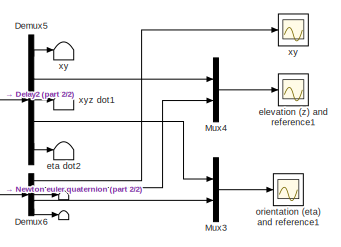
[diagram: root canvas - part 1/2, top right region]
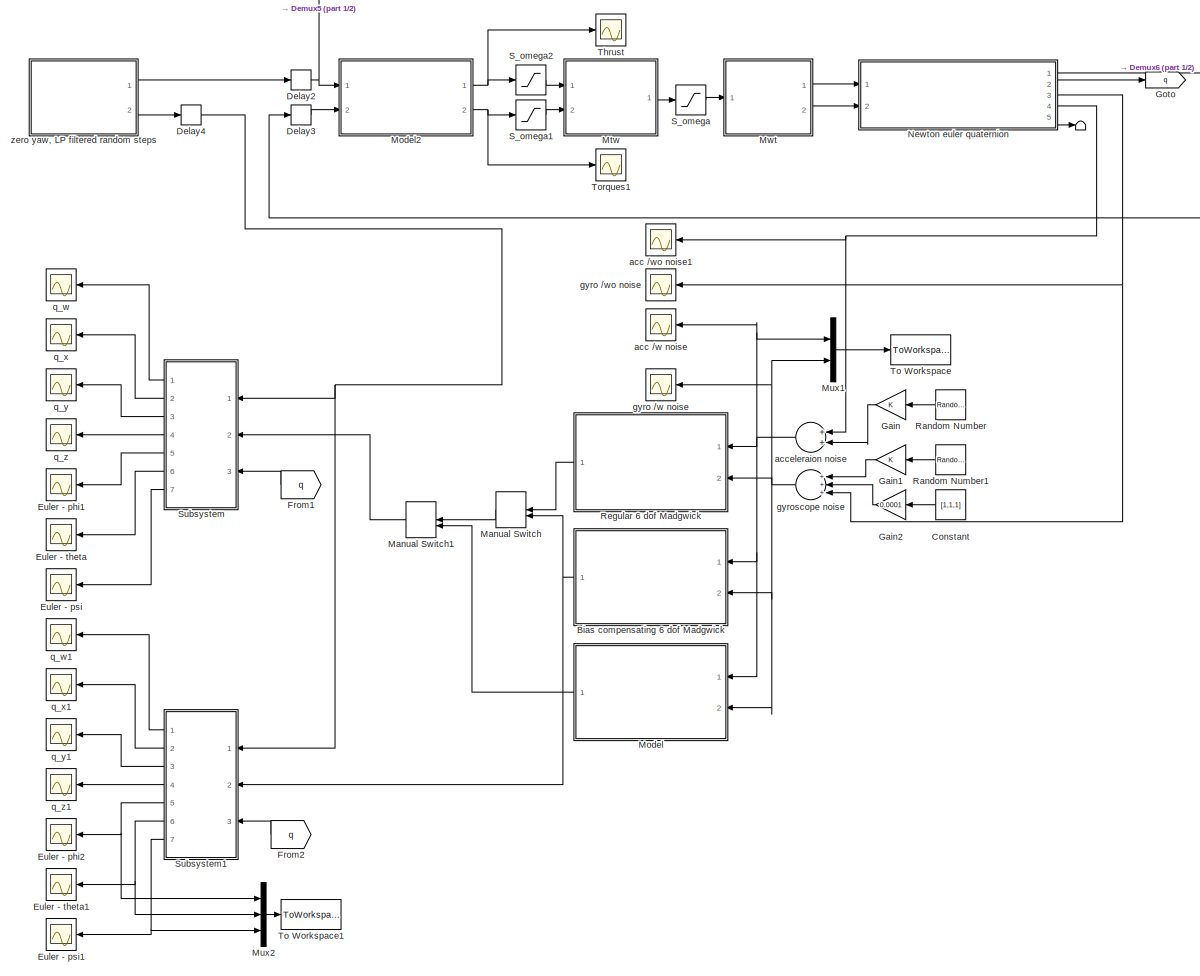
[diagram: root canvas - part 2/2, most of the canvas]
MODEL slx_3e022dd933c5
KIND model
CONFIG AbsTol = auto
CONFIG FixedStep = auto
CONFIG MaxStep = auto
CONFIG MinStep = auto
CONFIG RelTol = 1e-3
CONFIG SampleTimeConstraint = Unconstrained
CONFIG Solver = VariableStepAuto
CONFIG SolverMode = Auto
CONFIG SolverName = VariableStepAuto
CONFIG StartTime = 0.0
CONFIG StopTime = 60
BLOCK [Terminator]             
BLOCK [Terminator]               
BLOCK [Terminator]                
BLOCK [Terminator]    eta dot2
BLOCK [Terminator]    xy
BLOCK [Terminator]   xyz dot1
BLOCK [ModelReference] Bias compensating 6 dof Madgwick
  ModelNameDialog = madgwick_bias.slx
  ModelReferenceVersion = 1.26
  Ports = [2, 1]
  Variant = off
BLOCK [Constant] Constant
  Value = [1,1,1]
BLOCK [Delay] Delay2
  DelayLength = 1
  InitialCondition = 0
  InputPortMap = u0
  Ports = [1, 1]
  SampleTime = inner_h
BLOCK [Delay] Delay3
  DelayLength = 1
  InitialCondition = 0
  InputPortMap = u0
  Ports = [1, 1]
  SampleTime = inner_h
BLOCK [Delay] Delay4
  DelayLength = 1
  InitialCondition = 0
  InputPortMap = u0
  Ports = [1, 1]
  SampleTime = inner_h
BLOCK [Demux] Demux5
  DisplayOption = bar
  Outputs = [2,1,3,3,3]
  Ports = [1, 5]
BLOCK [Demux] Demux6
  DisplayOption = bar
  Outputs = [2,1,3,3,3]
  Ports = [1, 5]
BLOCK [Scope] Euler - phi1
  Ports = [1]
  ScopeSpecificationString = Simulink.scopes.TimeScopeBlockCfg('CurrentConfiguration', extmgr.ConfigurationSet(extmgr.Configuration('Core','General UI',true),extmgr.Configuration('Core','Source UI',true),extmgr.Configuration('Sources','WiredSimulink',true,'DataLoggingVariableName','ScopeData1','DataLoggingSaveFormat','Array','DataLoggingDecimation','1','DataLoggingDecimateData',true),extmgr.Configuration('Visuals','Time Domai...<+1504ch>
BLOCK [Scope] Euler - phi2
  Ports = [1]
  ScopeSpecificationString = Simulink.scopes.TimeScopeBlockCfg('CurrentConfiguration', extmgr.ConfigurationSet(extmgr.Configuration('Core','General UI',true),extmgr.Configuration('Core','Source UI',true),extmgr.Configuration('Sources','WiredSimulink',true,'DataLoggingVariableName','ScopeData1','DataLoggingSaveFormat','Array','DataLoggingDecimation','1','DataLoggingDecimateData',true),extmgr.Configuration('Visuals','Time Domai...<+1504ch>
BLOCK [Scope] Euler - psi
  Ports = [1]
  ScopeSpecificationString = Simulink.scopes.TimeScopeBlockCfg('CurrentConfiguration', extmgr.ConfigurationSet(extmgr.Configuration('Core','General UI',true),extmgr.Configuration('Core','Source UI',true),extmgr.Configuration('Sources','WiredSimulink',true,'DataLoggingVariableName','ScopeData2','DataLoggingSaveFormat','Array','DataLoggingDecimation','1','DataLoggingDecimateData',true),extmgr.Configuration('Visuals','Time Domai...<+1479ch>
BLOCK [Scope] Euler - psi1
  Ports = [1]
  ScopeSpecificationString = Simulink.scopes.TimeScopeBlockCfg('CurrentConfiguration', extmgr.ConfigurationSet(extmgr.Configuration('Core','General UI',true),extmgr.Configuration('Core','Source UI',true),extmgr.Configuration('Sources','WiredSimulink',true,'DataLoggingVariableName','ScopeData2','DataLoggingSaveFormat','Array','DataLoggingDecimation','1','DataLoggingDecimateData',true),extmgr.Configuration('Visuals','Time Domai...<+1481ch>
BLOCK [Scope] Euler - theta
  Ports = [1]
  ScopeSpecificationString = Simulink.scopes.TimeScopeBlockCfg('CurrentConfiguration', extmgr.ConfigurationSet(extmgr.Configuration('Core','General UI',true),extmgr.Configuration('Core','Source UI',true),extmgr.Configuration('Sources','WiredSimulink',true,'DataLoggingVariableName','ScopeData3','DataLoggingSaveFormat','Array','DataLoggingDecimation','1','DataLoggingDecimateData',true),extmgr.Configuration('Visuals','Time Domai...<+1505ch>
BLOCK [Scope] Euler - theta1
  Ports = [1]
  ScopeSpecificationString = Simulink.scopes.TimeScopeBlockCfg('CurrentConfiguration', extmgr.ConfigurationSet(extmgr.Configuration('Core','General UI',true),extmgr.Configuration('Core','Source UI',true),extmgr.Configuration('Sources','WiredSimulink',true,'DataLoggingVariableName','ScopeData3'),extmgr.Configuration('Visuals','Time Domain',true,'SerializedDisplays',{struct('MinYLimReal','-0.51215','MaxYLimReal','0.1494','YLabe...<+1416ch>
BLOCK [From] From1
  GotoTag = q
BLOCK [From] From2
  GotoTag = q
BLOCK [Gain] Gain
  OutDataTypeStr = Inherit: Inherit via internal rule
  ParamDataTypeStr = Inherit: Inherit via internal rule
  SaturateOnIntegerOverflow = off
BLOCK [Gain] Gain1
  OutDataTypeStr = Inherit: Inherit via internal rule
  ParamDataTypeStr = Inherit: Inherit via internal rule
  SaturateOnIntegerOverflow = off
BLOCK [Gain] Gain2
  Gain = 0.0001
  OutDataTypeStr = Inherit: Inherit via internal rule
  ParamDataTypeStr = Inherit: Inherit via internal rule
  SaturateOnIntegerOverflow = off
BLOCK [Goto] Goto
  GotoTag = q
BLOCK [ManualSwitch] Manual Switch
  CurrentSetting = 0
BLOCK [ManualSwitch] Manual Switch1
BLOCK [ModelReference] Model
  ModelNameDialog = mahony.slx
  ModelReferenceVersion = 1.2
  Ports = [2, 1]
  Variant = off
BLOCK [ModelReference] Model2
  ModelNameDialog = inner_PD_c.mdl
  ModelReferenceVersion = 1.87
  Ports = [2, 2]
  Variant = off
BLOCK [ModelReference] Mtw
  ModelNameDialog = thrust2omega.mdl
  ModelReferenceVersion = 1.3
  Ports = [2, 1]
  Variant = off
BLOCK [Mux] Mux1
  DisplayOption = bar
  Inputs = 2
  Ports = [2, 1]
BLOCK [Mux] Mux2
  DisplayOption = bar
  Inputs = 3
  Ports = [3, 1]
BLOCK [Mux] Mux3
  DisplayOption = bar
  Inputs = 2
  Ports = [2, 1]
BLOCK [Mux] Mux4
  DisplayOption = bar
  Inputs = 2
  Ports = [2, 1]
BLOCK [ModelReference] Mwt
  ModelNameDialog = omega2thrust.mdl
  ModelReferenceVersion = 1.3
  Ports = [1, 2]
  Variant = off
BLOCK [ModelReference] Newton euler quaternion
  ModelNameDialog = quadcopter_model_c_NewtonEuler.mdl
  ModelReferenceVersion = 1.325
  Ports = [2, 5]
  Variant = off
BLOCK [RandomNumber] Random Number
  Mean = [0,0,0]
  Variance = [0.5, 0.5, 0.5].^2
BLOCK [RandomNumber] Random Number1
  Mean = [0,0,0]
  Variance = [0.05,0.05,0.05].^2
BLOCK [ModelReference] Regular 6 dof Madgwick
  ModelNameDialog = madgwick.slx
  ModelReferenceVersion = 1.26
  Ports = [2, 1]
  Variant = off
BLOCK [Saturate] S_omega
  InputPortMap = u0
  LowerLimit = omega_min_lim
  Ports = [1, 1]
  UpperLimit = omega_max_lim
BLOCK [Saturate] S_omega1
  InputPortMap = u0
  LowerLimit = tau_min_lim
  Ports = [1, 1]
  UpperLimit = tau_max_lim
BLOCK [Saturate] S_omega2
  InputPortMap = u0
  LowerLimit = tau_min_lim
  Ports = [1, 1]
  UpperLimit = T_max_lim
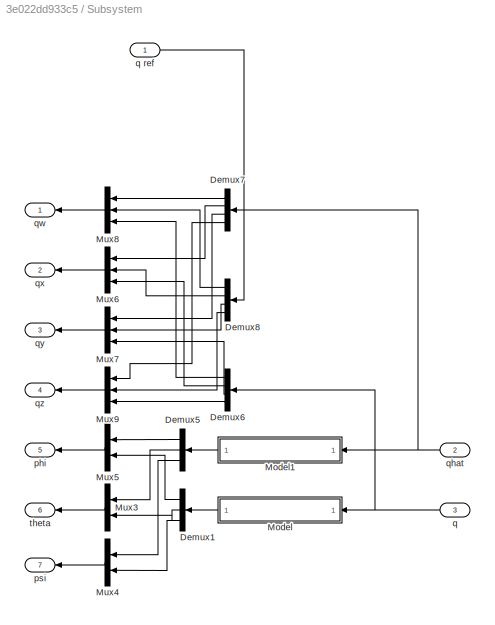
BLOCK [SubSystem] Subsystem
  Ports = [3, 7]
  RequestExecContextInheritance = off
  Variant = off
BLOCK [Demux] Subsystem/Demux1
  DisplayOption = bar
  Outputs = 3
  Ports = [1, 3]
BLOCK [Demux] Subsystem/Demux5
  DisplayOption = bar
  Outputs = 3
  Ports = [1, 3]
BLOCK [Demux] Subsystem/Demux6
  DisplayOption = bar
  Ports = [1, 4]
BLOCK [Demux] Subsystem/Demux7
  DisplayOption = bar
  Ports = [1, 4]
BLOCK [Demux] Subsystem/Demux8
  DisplayOption = bar
  Ports = [1, 4]
BLOCK [ModelReference] Subsystem/Model
  ModelNameDialog = quaternion2euler.mdl
  ModelReferenceVersion = 1.92
  Ports = [1, 1]
  Variant = off
BLOCK [ModelReference] Subsystem/Model1
  ModelNameDialog = quaternion2euler.mdl
  ModelReferenceVersion = 1.92
  Ports = [1, 1]
  Variant = off
BLOCK [Mux] Subsystem/Mux3
  DisplayOption = bar
  Inputs = 2
  Ports = [2, 1]
BLOCK [Mux] Subsystem/Mux4
  DisplayOption = bar
  Inputs = 2
  Ports = [2, 1]
BLOCK [Mux] Subsystem/Mux5
  DisplayOption = bar
  Inputs = 2
  Ports = [2, 1]
BLOCK [Mux] Subsystem/Mux6
  DisplayOption = bar
  Inputs = 3
  Ports = [3, 1]
BLOCK [Mux] Subsystem/Mux7
  DisplayOption = bar
  Inputs = 3
  Ports = [3, 1]
BLOCK [Mux] Subsystem/Mux8
  DisplayOption = bar
  Inputs = 3
  Ports = [3, 1]
BLOCK [Mux] Subsystem/Mux9
  DisplayOption = bar
  Inputs = 3
  Ports = [3, 1]
BLOCK [Outport] Subsystem/phi
  IconDisplay = Port number
  Port = 5
BLOCK [Outport] Subsystem/psi
  IconDisplay = Port number
  Port = 7
BLOCK [Inport] Subsystem/q
  IconDisplay = Port number
  Port = 3
BLOCK [Inport] Subsystem/q ref
  IconDisplay = Port number
BLOCK [Inport] Subsystem/qhat
  IconDisplay = Port number
  Port = 2
BLOCK [Outport] Subsystem/qw
  IconDisplay = Port number
BLOCK [Outport] Subsystem/qx
  IconDisplay = Port number
  Port = 2
BLOCK [Outport] Subsystem/qy
  IconDisplay = Port number
  Port = 3
BLOCK [Outport] Subsystem/qz
  IconDisplay = Port number
  Port = 4
BLOCK [Outport] Subsystem/theta
  IconDisplay = Port number
  Port = 6
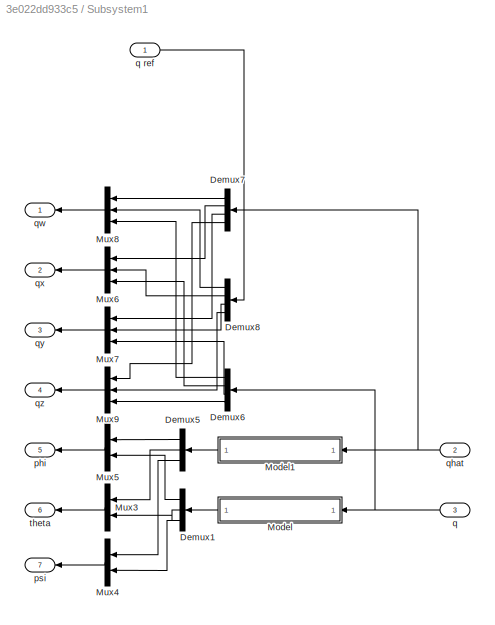
BLOCK [SubSystem] Subsystem1
  Ports = [3, 7]
  RequestExecContextInheritance = off
  Variant = off
BLOCK [Demux] Subsystem1/Demux1
  DisplayOption = bar
  Outputs = 3
  Ports = [1, 3]
BLOCK [Demux] Subsystem1/Demux5
  DisplayOption = bar
  Outputs = 3
  Ports = [1, 3]
BLOCK [Demux] Subsystem1/Demux6
  DisplayOption = bar
  Ports = [1, 4]
BLOCK [Demux] Subsystem1/Demux7
  DisplayOption = bar
  Ports = [1, 4]
BLOCK [Demux] Subsystem1/Demux8
  DisplayOption = bar
  Ports = [1, 4]
BLOCK [ModelReference] Subsystem1/Model
  ModelNameDialog = quaternion2euler.mdl
  ModelReferenceVersion = 1.92
  Ports = [1, 1]
  Variant = off
BLOCK [ModelReference] Subsystem1/Model1
  ModelNameDialog = quaternion2euler.mdl
  ModelReferenceVersion = 1.92
  Ports = [1, 1]
  Variant = off
BLOCK [Mux] Subsystem1/Mux3
  DisplayOption = bar
  Inputs = 2
  Ports = [2, 1]
BLOCK [Mux] Subsystem1/Mux4
  DisplayOption = bar
  Inputs = 2
  Ports = [2, 1]
BLOCK [Mux] Subsystem1/Mux5
  DisplayOption = bar
  Inputs = 2
  Ports = [2, 1]
BLOCK [Mux] Subsystem1/Mux6
  DisplayOption = bar
  Inputs = 3
  Ports = [3, 1]
BLOCK [Mux] Subsystem1/Mux7
  DisplayOption = bar
  Inputs = 3
  Ports = [3, 1]
BLOCK [Mux] Subsystem1/Mux8
  DisplayOption = bar
  Inputs = 3
  Ports = [3, 1]
BLOCK [Mux] Subsystem1/Mux9
  DisplayOption = bar
  Inputs = 3
  Ports = [3, 1]
BLOCK [Outport] Subsystem1/phi
  IconDisplay = Port number
  Port = 5
BLOCK [Outport] Subsystem1/psi
  IconDisplay = Port number
  Port = 7
BLOCK [Inport] Subsystem1/q
  IconDisplay = Port number
  Port = 3
BLOCK [Inport] Subsystem1/q ref
  IconDisplay = Port number
BLOCK [Inport] Subsystem1/qhat
  IconDisplay = Port number
  Port = 2
BLOCK [Outport] Subsystem1/qw
  IconDisplay = Port number
BLOCK [Outport] Subsystem1/qx
  IconDisplay = Port number
  Port = 2
BLOCK [Outport] Subsystem1/qy
  IconDisplay = Port number
  Port = 3
BLOCK [Outport] Subsystem1/qz
  IconDisplay = Port number
  Port = 4
BLOCK [Outport] Subsystem1/theta
  IconDisplay = Port number
  Port = 6
BLOCK [Scope] Thrust
  Ports = [1]
  ScopeSpecificationString = C++SS(StrPVP('SaveName','ScopeData12'),StrPVP('LimitDataPoints','on'),StrPVP('DataFormat','Array'),StrPVP('Decimation','1'),StrPVP('BlockParamSampleInput','off'))
BLOCK [ToWorkspace] To Workspace
  FixptAsFi = on
  MaxDataPoints = inf
  Ports = [1]
  SampleTime = -1
  Save2DSignal = 3-D array (concatenate along third dimension)
  SaveFormat = Timeseries
  VariableName = measurements
BLOCK [ToWorkspace] To Workspace1
  FixptAsFi = on
  MaxDataPoints = inf
  Ports = [1]
  SampleTime = -1
  Save2DSignal = 3-D array (concatenate along third dimension)
  SaveFormat = Timeseries
  VariableName = response
BLOCK [Scope] Torques1
  Ports = [1]
  ScopeSpecificationString = C++SS(StrPVP('SaveName','ScopeData13'),StrPVP('LimitDataPoints','on'),StrPVP('DataFormat','Array'),StrPVP('Decimation','1'),StrPVP('BlockParamSampleInput','off'))
BLOCK [Scope] acc //w noise
  Ports = [1]
  ScopeSpecificationString = Simulink.scopes.TimeScopeBlockCfg('CurrentConfiguration', extmgr.ConfigurationSet(extmgr.Configuration('Core','General UI',true),extmgr.Configuration('Core','Source UI',true),extmgr.Configuration('Sources','WiredSimulink',true,'DataLoggingVariableName','ScopeData4','DataLoggingSaveFormat','Array','DataLoggingDecimation','1','DataLoggingDecimateData',true),extmgr.Configuration('Visuals','Time Domai...<+1540ch>
BLOCK [Scope] acc //wo noise1
  Ports = [1]
  ScopeSpecificationString = Simulink.scopes.TimeScopeBlockCfg('CurrentConfiguration', extmgr.ConfigurationSet(extmgr.Configuration('Core','General UI',true),extmgr.Configuration('Core','Source UI',true),extmgr.Configuration('Sources','WiredSimulink',true,'DataLoggingVariableName','ScopeData5'),extmgr.Configuration('Visuals','Time Domain',true,'SerializedDisplays',{struct('MinYLimReal','-5.64789','MaxYLimReal','5.85427','YLab...<+1473ch>
BLOCK [Sum] acceleraion noise
  InputSameDT = off
  OutDataTypeStr = Inherit: Inherit via internal rule
  Ports = [2, 1]
  SaturateOnIntegerOverflow = off
BLOCK [Scope] elevation (z) and reference1
  Ports = [1]
  ScopeSpecificationString = Simulink.scopes.TimeScopeBlockCfg('CurrentConfiguration', extmgr.ConfigurationSet(extmgr.Configuration('Core','General UI',true),extmgr.Configuration('Core','Source UI',true),extmgr.Configuration('Sources','WiredSimulink',true,'DataLoggingVariableName','ScopeData14','DataLoggingSaveFormat','Array','DataLoggingDecimation','1','DataLoggingDecimateData',true),extmgr.Configuration('Visuals','Time Doma...<+1470ch>
BLOCK [Scope] gyro //w noise
  Ports = [1]
  ScopeSpecificationString = Simulink.scopes.TimeScopeBlockCfg('CurrentConfiguration', extmgr.ConfigurationSet(extmgr.Configuration('Core','General UI',true),extmgr.Configuration('Core','Source UI',true),extmgr.Configuration('Sources','WiredSimulink',true,'DataLoggingVariableName','ScopeData1','DataLoggingSaveFormat','Array','DataLoggingDecimation','1','DataLoggingDecimateData',true),extmgr.Configuration('Visuals','Time Domai...<+1532ch>
BLOCK [Scope] gyro //wo noise
  Ports = [1]
  ScopeSpecificationString = Simulink.scopes.TimeScopeBlockCfg('CurrentConfiguration', extmgr.ConfigurationSet(extmgr.Configuration('Core','General UI',true),extmgr.Configuration('Core','Source UI',true),extmgr.Configuration('Sources','WiredSimulink',true,'DataLoggingVariableName','ScopeData7','DataLoggingLimitDataPoints',true,'DataLoggingSaveFormat','Array','DataLoggingDecimation','1','DataLoggingDecimateData',true),extmgr.C...<+1594ch>
BLOCK [Sum] gyroscope noise
  InputSameDT = off
  Inputs = +++
  OutDataTypeStr = Inherit: Inherit via internal rule
  Ports = [3, 1]
  SaturateOnIntegerOverflow = off
BLOCK [Scope] orientation (eta) and reference1
  Ports = [1]
  ScopeSpecificationString = Simulink.scopes.TimeScopeBlockCfg('CurrentConfiguration', extmgr.ConfigurationSet(extmgr.Configuration('Core','General UI',true),extmgr.Configuration('Core','Source UI',true),extmgr.Configuration('Sources','WiredSimulink',true,'DataLoggingVariableName','ScopeData17','DataLoggingSaveFormat','Array','DataLoggingDecimation','1','DataLoggingDecimateData',true),extmgr.Configuration('Visuals','Time Doma...<+1499ch>
BLOCK [Scope] q_w
  Ports = [1]
  ScopeSpecificationString = Simulink.scopes.TimeScopeBlockCfg('CurrentConfiguration', extmgr.ConfigurationSet(extmgr.Configuration('Core','General UI',true),extmgr.Configuration('Core','Source UI',true),extmgr.Configuration('Sources','WiredSimulink',true,'DataLoggingVariableName','ScopeData8','DataLoggingSaveFormat','Array','DataLoggingDecimation','1','DataLoggingDecimateData',true),extmgr.Configuration('Visuals','Time Domai...<+1529ch>
BLOCK [Scope] q_w1
  Ports = [1]
  ScopeSpecificationString = Simulink.scopes.TimeScopeBlockCfg('CurrentConfiguration', extmgr.ConfigurationSet(extmgr.Configuration('Core','General UI',true),extmgr.Configuration('Core','Source UI',true),extmgr.Configuration('Sources','WiredSimulink',true,'DataLoggingVariableName','ScopeData4','DataLoggingSaveFormat','Array','DataLoggingDecimation','1','DataLoggingDecimateData',true),extmgr.Configuration('Visuals','Time Domai...<+1529ch>
BLOCK [Scope] q_x
  Ports = [1]
  ScopeSpecificationString = Simulink.scopes.TimeScopeBlockCfg('CurrentConfiguration', extmgr.ConfigurationSet(extmgr.Configuration('Core','General UI',true),extmgr.Configuration('Core','Source UI',true),extmgr.Configuration('Sources','WiredSimulink',true,'DataLoggingVariableName','ScopeData9','DataLoggingLimitDataPoints',true,'DataLoggingSaveFormat','Array','DataLoggingDecimation','1','DataLoggingDecimateData',true),extmgr.C...<+1529ch>
BLOCK [Scope] q_x1
  Ports = [1]
  ScopeSpecificationString = Simulink.scopes.TimeScopeBlockCfg('CurrentConfiguration', extmgr.ConfigurationSet(extmgr.Configuration('Core','General UI',true),extmgr.Configuration('Core','Source UI',true),extmgr.Configuration('Sources','WiredSimulink',true,'DataLoggingVariableName','ScopeData5','DataLoggingLimitDataPoints',true,'DataLoggingSaveFormat','Array','DataLoggingDecimation','1','DataLoggingDecimateData',true),extmgr.C...<+1532ch>
BLOCK [Scope] q_y
  Ports = [1]
  ScopeSpecificationString = Simulink.scopes.TimeScopeBlockCfg('CurrentConfiguration', extmgr.ConfigurationSet(extmgr.Configuration('Core','General UI',true),extmgr.Configuration('Core','Source UI',true),extmgr.Configuration('Sources','WiredSimulink',true,'DataLoggingVariableName','ScopeData10','DataLoggingLimitDataPoints',true,'DataLoggingSaveFormat','Array','DataLoggingDecimation','1','DataLoggingDecimateData',true),extmgr....<+1559ch>
BLOCK [Scope] q_y1
  Ports = [1]
  ScopeSpecificationString = C++SS(StrPVP('SaveName','ScopeData6'),StrPVP('LimitDataPoints','on'),StrPVP('DataFormat','Array'),StrPVP('Decimation','1'),StrPVP('BlockParamSampleInput','off'))
BLOCK [Scope] q_z
  Ports = [1]
  ScopeSpecificationString = Simulink.scopes.TimeScopeBlockCfg('CurrentConfiguration', extmgr.ConfigurationSet(extmgr.Configuration('Core','General UI',true),extmgr.Configuration('Core','Source UI',true),extmgr.Configuration('Sources','WiredSimulink',true,'DataLoggingVariableName','ScopeData11','DataLoggingLimitDataPoints',true,'DataLoggingSaveFormat','Array','DataLoggingDecimation','1','DataLoggingDecimateData',true),extmgr....<+1528ch>
BLOCK [Scope] q_z1
  Ports = [1]
  ScopeSpecificationString = Simulink.scopes.TimeScopeBlockCfg('CurrentConfiguration', extmgr.ConfigurationSet(extmgr.Configuration('Core','General UI',true),extmgr.Configuration('Core','Source UI',true),extmgr.Configuration('Sources','WiredSimulink',true,'DataLoggingVariableName','ScopeData7'),extmgr.Configuration('Visuals','Time Domain',true,'SerializedDisplays',{struct('MinYLimReal','-0.6359','MaxYLimReal','0.71498','YLabe...<+1405ch>
BLOCK [Scope] xy
  Ports = [1]
  ScopeSpecificationString = Simulink.scopes.TimeScopeBlockCfg('CurrentConfiguration', extmgr.ConfigurationSet(extmgr.Configuration('Core','General UI',true),extmgr.Configuration('Core','Source UI',true),extmgr.Configuration('Sources','WiredSimulink',true,'DataLoggingLimitDataPoints',true,'DataLoggingSaveFormat','Array','DataLoggingDecimation','1','DataLoggingDecimateData',true),extmgr.Configuration('Visuals','Time Domain',tr...<+1482ch>
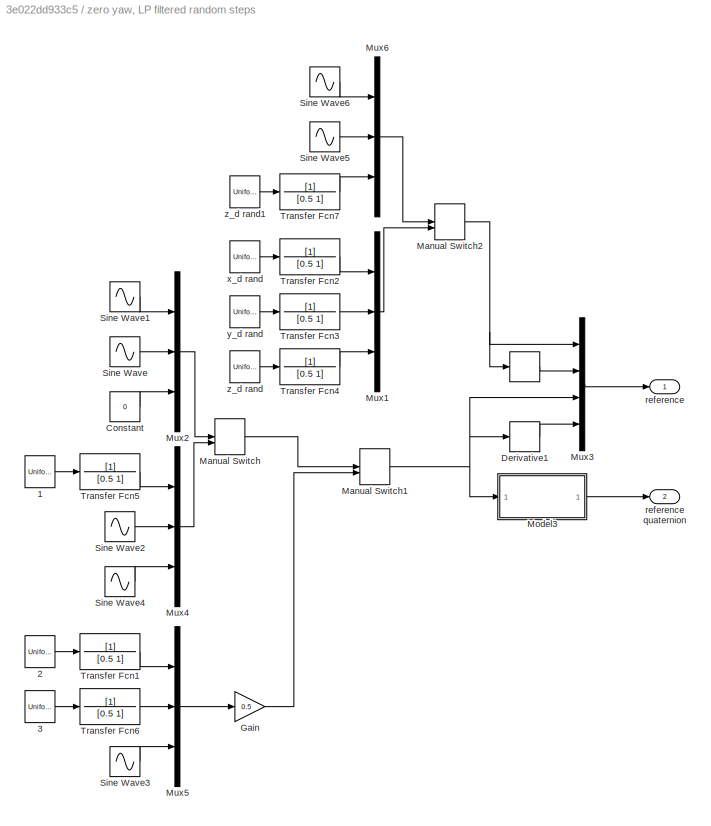
BLOCK [SubSystem] zero yaw, LP filtered random steps
  Ports = [0, 2]
  RequestExecContextInheritance = off
  Variant = off
BLOCK [Derivative] zero yaw, LP filtered random steps/        
BLOCK [UniformRandomNumber] zero yaw, LP filtered random steps/   1
  Maximum = 0.2
  Minimum = -0.2
  SampleTime = 5
  Seed = 5
BLOCK [UniformRandomNumber] zero yaw, LP filtered random steps/   2
  SampleTime = 5
  Seed = 5
BLOCK [UniformRandomNumber] zero yaw, LP filtered random steps/   3
  SampleTime = 5
  Seed = 3
BLOCK [Constant] zero yaw, LP filtered random steps/Constant
  Value = 0
BLOCK [Derivative] zero yaw, LP filtered random steps/Derivative1
BLOCK [Gain] zero yaw, LP filtered random steps/Gain
  Gain = 0.5
  OutDataTypeStr = Inherit: Inherit via internal rule
  ParamDataTypeStr = Inherit: Inherit via internal rule
  SaturateOnIntegerOverflow = off
BLOCK [ManualSwitch] zero yaw, LP filtered random steps/Manual Switch
  CurrentSetting = 0
BLOCK [ManualSwitch] zero yaw, LP filtered random steps/Manual Switch1
  CurrentSetting = 0
BLOCK [ManualSwitch] zero yaw, LP filtered random steps/Manual Switch2
BLOCK [ModelReference] zero yaw, LP filtered random steps/Model3
  ModelNameDialog = euler2quaternion.mdl
  ModelReferenceVersion = 1.5
  Ports = [1, 1]
  Variant = off
BLOCK [Mux] zero yaw, LP filtered random steps/Mux1
  DisplayOption = bar
  Inputs = 3
  Ports = [3, 1]
BLOCK [Mux] zero yaw, LP filtered random steps/Mux2
  DisplayOption = bar
  Inputs = 3
  Ports = [3, 1]
BLOCK [Mux] zero yaw, LP filtered random steps/Mux3
  DisplayOption = bar
  Inputs = [3,3,3,3]
  Ports = [4, 1]
BLOCK [Mux] zero yaw, LP filtered random steps/Mux4
  DisplayOption = bar
  Inputs = 3
  Ports = [3, 1]
BLOCK [Mux] zero yaw, LP filtered random steps/Mux5
  DisplayOption = bar
  Inputs = 3
  Ports = [3, 1]
BLOCK [Mux] zero yaw, LP filtered random steps/Mux6
  DisplayOption = bar
  Inputs = 3
  Ports = [3, 1]
BLOCK [Sin] zero yaw, LP filtered random steps/Sine Wave
  Amplitude = 0.4
  Ports = [0, 1]
  SampleTime = 0
BLOCK [Sin] zero yaw, LP filtered random steps/Sine Wave1
  Amplitude = 0.4
  Phase = 60
  Ports = [0, 1]
  SampleTime = 0
BLOCK [Sin] zero yaw, LP filtered random steps/Sine Wave2
  Amplitude = 0.1
  Ports = [0, 1]
  SampleTime = 0
BLOCK [Sin] zero yaw, LP filtered random steps/Sine Wave3
  Amplitude = 2
  Frequency = 0.5
  Ports = [0, 1]
  SampleTime = 0
BLOCK [Sin] zero yaw, LP filtered random steps/Sine Wave4
  Amplitude = 0.1
  Ports = [0, 1]
  SampleTime = 0
BLOCK [Sin] zero yaw, LP filtered random steps/Sine Wave5
  Amplitude = 0.1
  Ports = [0, 1]
  SampleTime = 0
BLOCK [Sin] zero yaw, LP filtered random steps/Sine Wave6
  Amplitude = 0.1
  Phase = 60
  Ports = [0, 1]
  SampleTime = 0
BLOCK [TransferFcn] zero yaw, LP filtered random steps/Transfer Fcn1
  Denominator = [0.5 1]
BLOCK [TransferFcn] zero yaw, LP filtered random steps/Transfer Fcn2
  Denominator = [0.5 1]
BLOCK [TransferFcn] zero yaw, LP filtered random steps/Transfer Fcn3
  Denominator = [0.5 1]
BLOCK [TransferFcn] zero yaw, LP filtered random steps/Transfer Fcn4
  Denominator = [0.5 1]
BLOCK [TransferFcn] zero yaw, LP filtered random steps/Transfer Fcn5
  Denominator = [0.5 1]
BLOCK [TransferFcn] zero yaw, LP filtered random steps/Transfer Fcn6
  Denominator = [0.5 1]
BLOCK [TransferFcn] zero yaw, LP filtered random steps/Transfer Fcn7
  Denominator = [0.5 1]
BLOCK [Outport] zero yaw, LP filtered random steps/reference
  IconDisplay = Port number
BLOCK [Outport] zero yaw, LP filtered random steps/reference quaternion
  IconDisplay = Port number
  Port = 2
BLOCK [UniformRandomNumber] zero yaw, LP filtered random steps/x_d rand
  Maximum = 30
  Minimum = -30
  SampleTime = 10
BLOCK [UniformRandomNumber] zero yaw, LP filtered random steps/y_d rand
  Maximum = 30
  Minimum = -30
  SampleTime = 10
  Seed = 1
BLOCK [UniformRandomNumber] zero yaw, LP filtered random steps/z_d rand
  Maximum = 2
  Minimum = 0
  SampleTime = 5
  Seed = 2
BLOCK [UniformRandomNumber] zero yaw, LP filtered random steps/z_d rand1
  Minimum = 0
  SampleTime = 10
  Seed = 2
NET Bias compensating 6 dof Madgwick:1 -> Manual Switch:2, Subsystem1:2
LINE Constant:1 -> Gain2:1
NET Delay2:1 -> Demux5:1, Model2:1
LINE Delay3:1 -> Model2:2
NET Delay4:1 -> Subsystem1:1, Subsystem:1
LINE Demux5:1 ->    xy:1
LINE Demux5:2 -> Mux4:1
LINE Demux5:3 ->   xyz dot1:1
LINE Demux5:4 -> Mux3:1
LINE Demux5:5 ->    eta dot2:1
LINE Demux6:1 -> xy:1
LINE Demux6:2 -> Mux4:2
LINE Demux6:3 ->               :1
LINE Demux6:4 -> Mux3:2
LINE Demux6:5 ->                :1
LINE From1:1 -> Subsystem:3
LINE From2:1 -> Subsystem1:3
LINE Gain1:1 -> gyroscope noise:1
LINE Gain2:1 -> gyroscope noise:2
LINE Gain:1 -> acceleraion noise:2
LINE Manual Switch1:1 -> Subsystem:2
LINE Manual Switch:1 -> Manual Switch1:1
NET Model2:1 -> S_omega2:1, Thrust:1
NET Model2:2 -> S_omega1:1, Torques1:1
LINE Model:1 -> Manual Switch1:2
LINE Mtw:1 -> S_omega:1
LINE Mux1:1 -> To Workspace:1
LINE Mux2:1 -> To Workspace1:1
LINE Mux3:1 -> orientation (eta) and reference1:1
LINE Mux4:1 -> elevation (z) and reference1:1
LINE Mwt:1 -> Newton euler quaternion:1
LINE Mwt:2 -> Newton euler quaternion:2
NET Newton euler quaternion:1 -> Delay3:1, Demux6:1
LINE Newton euler quaternion:2 -> Goto:1
NET Newton euler quaternion:3 -> gyro //wo noise:1, gyroscope noise:3
NET Newton euler quaternion:4 -> acc //wo noise1:1, acceleraion noise:1
LINE Newton euler quaternion:5 ->             :1
LINE Random Number1:1 -> Gain1:1
LINE Random Number:1 -> Gain:1
LINE Regular 6 dof Madgwick:1 -> Manual Switch:1
LINE S_omega1:1 -> Mtw:2
LINE S_omega2:1 -> Mtw:1
LINE S_omega:1 -> Mwt:1
LINE Subsystem/Demux1:1 -> Subsystem/Mux5:2
LINE Subsystem/Demux1:2 -> Subsystem/Mux3:2
LINE Subsystem/Demux1:3 -> Subsystem/Mux4:2
LINE Subsystem/Demux5:1 -> Subsystem/Mux5:1
LINE Subsystem/Demux5:2 -> Subsystem/Mux3:1
LINE Subsystem/Demux5:3 -> Subsystem/Mux4:1
LINE Subsystem/Demux6:1 -> Subsystem/Mux8:3
LINE Subsystem/Demux6:2 -> Subsystem/Mux6:3
LINE Subsystem/Demux6:3 -> Subsystem/Mux7:3
LINE Subsystem/Demux6:4 -> Subsystem/Mux9:3
LINE Subsystem/Demux7:1 -> Subsystem/Mux8:1
LINE Subsystem/Demux7:2 -> Subsystem/Mux6:1
LINE Subsystem/Demux7:3 -> Subsystem/Mux7:1
LINE Subsystem/Demux7:4 -> Subsystem/Mux9:1
LINE Subsystem/Demux8:1 -> Subsystem/Mux8:2
LINE Subsystem/Demux8:2 -> Subsystem/Mux6:2
LINE Subsystem/Demux8:3 -> Subsystem/Mux7:2
LINE Subsystem/Demux8:4 -> Subsystem/Mux9:2
LINE Subsystem/Model1:1 -> Subsystem/Demux5:1
LINE Subsystem/Model:1 -> Subsystem/Demux1:1
LINE Subsystem/Mux3:1 -> Subsystem/theta:1
LINE Subsystem/Mux4:1 -> Subsystem/psi:1
LINE Subsystem/Mux5:1 -> Subsystem/phi:1
LINE Subsystem/Mux6:1 -> Subsystem/qx:1
LINE Subsystem/Mux7:1 -> Subsystem/qy:1
LINE Subsystem/Mux8:1 -> Subsystem/qw:1
LINE Subsystem/Mux9:1 -> Subsystem/qz:1
LINE Subsystem/q ref:1 -> Subsystem/Demux8:1
NET Subsystem/q:1 -> Subsystem/Demux6:1, Subsystem/Model:1
NET Subsystem/qhat:1 -> Subsystem/Demux7:1, Subsystem/Model1:1
LINE Subsystem1/Demux1:1 -> Subsystem1/Mux5:2
LINE Subsystem1/Demux1:2 -> Subsystem1/Mux3:2
LINE Subsystem1/Demux1:3 -> Subsystem1/Mux4:2
LINE Subsystem1/Demux5:1 -> Subsystem1/Mux5:1
LINE Subsystem1/Demux5:2 -> Subsystem1/Mux3:1
LINE Subsystem1/Demux5:3 -> Subsystem1/Mux4:1
LINE Subsystem1/Demux6:1 -> Subsystem1/Mux8:3
LINE Subsystem1/Demux6:2 -> Subsystem1/Mux6:3
LINE Subsystem1/Demux6:3 -> Subsystem1/Mux7:3
LINE Subsystem1/Demux6:4 -> Subsystem1/Mux9:3
LINE Subsystem1/Demux7:1 -> Subsystem1/Mux8:1
LINE Subsystem1/Demux7:2 -> Subsystem1/Mux6:1
LINE Subsystem1/Demux7:3 -> Subsystem1/Mux7:1
LINE Subsystem1/Demux7:4 -> Subsystem1/Mux9:1
LINE Subsystem1/Demux8:1 -> Subsystem1/Mux8:2
LINE Subsystem1/Demux8:2 -> Subsystem1/Mux6:2
LINE Subsystem1/Demux8:3 -> Subsystem1/Mux7:2
LINE Subsystem1/Demux8:4 -> Subsystem1/Mux9:2
LINE Subsystem1/Model1:1 -> Subsystem1/Demux5:1
LINE Subsystem1/Model:1 -> Subsystem1/Demux1:1
LINE Subsystem1/Mux3:1 -> Subsystem1/theta:1
LINE Subsystem1/Mux4:1 -> Subsystem1/psi:1
LINE Subsystem1/Mux5:1 -> Subsystem1/phi:1
LINE Subsystem1/Mux6:1 -> Subsystem1/qx:1
LINE Subsystem1/Mux7:1 -> Subsystem1/qy:1
LINE Subsystem1/Mux8:1 -> Subsystem1/qw:1
LINE Subsystem1/Mux9:1 -> Subsystem1/qz:1
LINE Subsystem1/q ref:1 -> Subsystem1/Demux8:1
NET Subsystem1/q:1 -> Subsystem1/Demux6:1, Subsystem1/Model:1
NET Subsystem1/qhat:1 -> Subsystem1/Demux7:1, Subsystem1/Model1:1
LINE Subsystem1:1 -> q_w1:1
LINE Subsystem1:2 -> q_x1:1
LINE Subsystem1:3 -> q_y1:1
LINE Subsystem1:4 -> q_z1:1
NET Subsystem1:5 -> Euler - phi2:1, Mux2:1
NET Subsystem1:6 -> Euler - theta1:1, Mux2:2
NET Subsystem1:7 -> Euler - psi1:1, Mux2:3
LINE Subsystem:1 -> q_w:1
LINE Subsystem:2 -> q_x:1
LINE Subsystem:3 -> q_y:1
LINE Subsystem:4 -> q_z:1
LINE Subsystem:5 -> Euler - phi1:1
LINE Subsystem:6 -> Euler - theta:1
LINE Subsystem:7 -> Euler - psi:1
NET acceleraion noise:1 -> Bias compensating 6 dof Madgwick:1, Model:1, Mux1:1, Regular 6 dof Madgwick:1, acc //w noise:1
NET gyroscope noise:1 -> Bias compensating 6 dof Madgwick:2, Model:2, Mux1:2, Regular 6 dof Madgwick:2, gyro //w noise:1
LINE zero yaw, LP filtered random steps/        :1 -> zero yaw, LP filtered random steps/Mux3:2
LINE zero yaw, LP filtered random steps/   1:1 -> zero yaw, LP filtered random steps/Transfer Fcn5:1
LINE zero yaw, LP filtered random steps/   2:1 -> zero yaw, LP filtered random steps/Transfer Fcn1:1
LINE zero yaw, LP filtered random steps/   3:1 -> zero yaw, LP filtered random steps/Transfer Fcn6:1
LINE zero yaw, LP filtered random steps/Constant:1 -> zero yaw, LP filtered random steps/Mux2:3
LINE zero yaw, LP filtered random steps/Derivative1:1 -> zero yaw, LP filtered random steps/Mux3:4
LINE zero yaw, LP filtered random steps/Gain:1 -> zero yaw, LP filtered random steps/Manual Switch1:2
NET zero yaw, LP filtered random steps/Manual Switch1:1 -> zero yaw, LP filtered random steps/Derivative1:1, zero yaw, LP filtered random steps/Model3:1, zero yaw, LP filtered random steps/Mux3:3
NET zero yaw, LP filtered random steps/Manual Switch2:1 -> zero yaw, LP filtered random steps/        :1, zero yaw, LP filtered random steps/Mux3:1
LINE zero yaw, LP filtered random steps/Manual Switch:1 -> zero yaw, LP filtered random steps/Manual Switch1:1
LINE zero yaw, LP filtered random steps/Model3:1 -> zero yaw, LP filtered random steps/reference quaternion:1
LINE zero yaw, LP filtered random steps/Mux1:1 -> zero yaw, LP filtered random steps/Manual Switch2:2
LINE zero yaw, LP filtered random steps/Mux2:1 -> zero yaw, LP filtered random steps/Manual Switch:1
LINE zero yaw, LP filtered random steps/Mux3:1 -> zero yaw, LP filtered random steps/reference:1
LINE zero yaw, LP filtered random steps/Mux4:1 -> zero yaw, LP filtered random steps/Manual Switch:2
LINE zero yaw, LP filtered random steps/Mux5:1 -> zero yaw, LP filtered random steps/Gain:1
LINE zero yaw, LP filtered random steps/Mux6:1 -> zero yaw, LP filtered random steps/Manual Switch2:1
LINE zero yaw, LP filtered random steps/Sine Wave1:1 -> zero yaw, LP filtered random steps/Mux2:1
LINE zero yaw, LP filtered random steps/Sine Wave2:1 -> zero yaw, LP filtered random steps/Mux4:2
LINE zero yaw, LP filtered random steps/Sine Wave3:1 -> zero yaw, LP filtered random steps/Mux5:3
LINE zero yaw, LP filtered random steps/Sine Wave4:1 -> zero yaw, LP filtered random steps/Mux4:3
LINE zero yaw, LP filtered random steps/Sine Wave5:1 -> zero yaw, LP filtered random steps/Mux6:2
LINE zero yaw, LP filtered random steps/Sine Wave6:1 -> zero yaw, LP filtered random steps/Mux6:1
LINE zero yaw, LP filtered random steps/Sine Wave:1 -> zero yaw, LP filtered random steps/Mux2:2
LINE zero yaw, LP filtered random steps/Transfer Fcn1:1 -> zero yaw, LP filtered random steps/Mux5:1
LINE zero yaw, LP filtered random steps/Transfer Fcn2:1 -> zero yaw, LP filtered random steps/Mux1:1
LINE zero yaw, LP filtered random steps/Transfer Fcn3:1 -> zero yaw, LP filtered random steps/Mux1:2
LINE zero yaw, LP filtered random steps/Transfer Fcn4:1 -> zero yaw, LP filtered random steps/Mux1:3
LINE zero yaw, LP filtered random steps/Transfer Fcn5:1 -> zero yaw, LP filtered random steps/Mux4:1
LINE zero yaw, LP filtered random steps/Transfer Fcn6:1 -> zero yaw, LP filtered random steps/Mux5:2
LINE zero yaw, LP filtered random steps/Transfer Fcn7:1 -> zero yaw, LP filtered random steps/Mux6:3
LINE zero yaw, LP filtered random steps/x_d rand:1 -> zero yaw, LP filtered random steps/Transfer Fcn2:1
LINE zero yaw, LP filtered random steps/y_d rand:1 -> zero yaw, LP filtered random steps/Transfer Fcn3:1
LINE zero yaw, LP filtered random steps/z_d rand1:1 -> zero yaw, LP filtered random steps/Transfer Fcn7:1
LINE zero yaw, LP filtered random steps/z_d rand:1 -> zero yaw, LP filtered random steps/Transfer Fcn4:1
LINE zero yaw, LP filtered random steps:1 -> Delay2:1
LINE zero yaw, LP filtered random steps:2 -> Delay4:1
note: NET lines group one-source signal fan-out (src -> all destinations, sorted); 1:1 wires keep LINE
